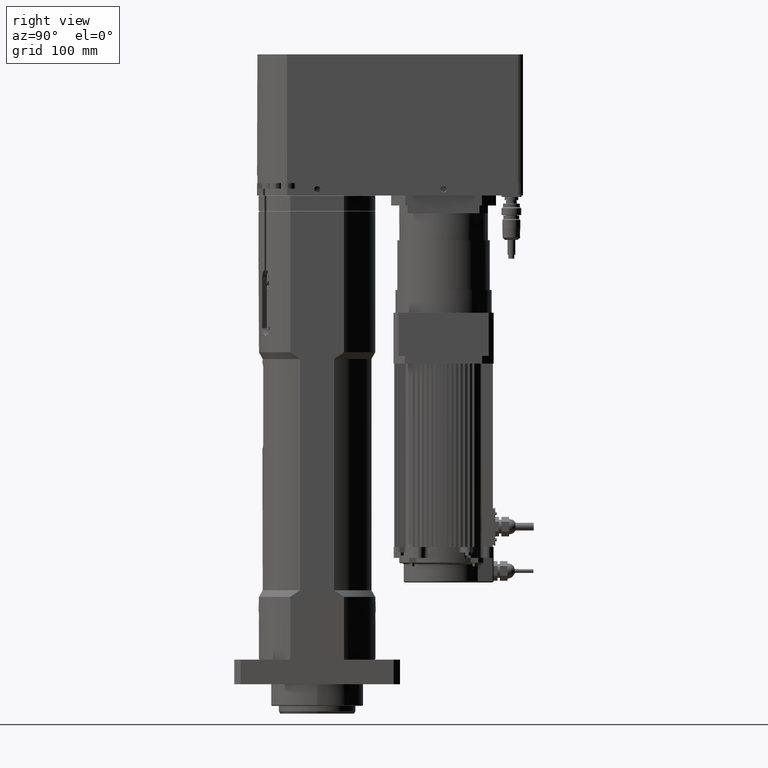
[diagram: clean part render]
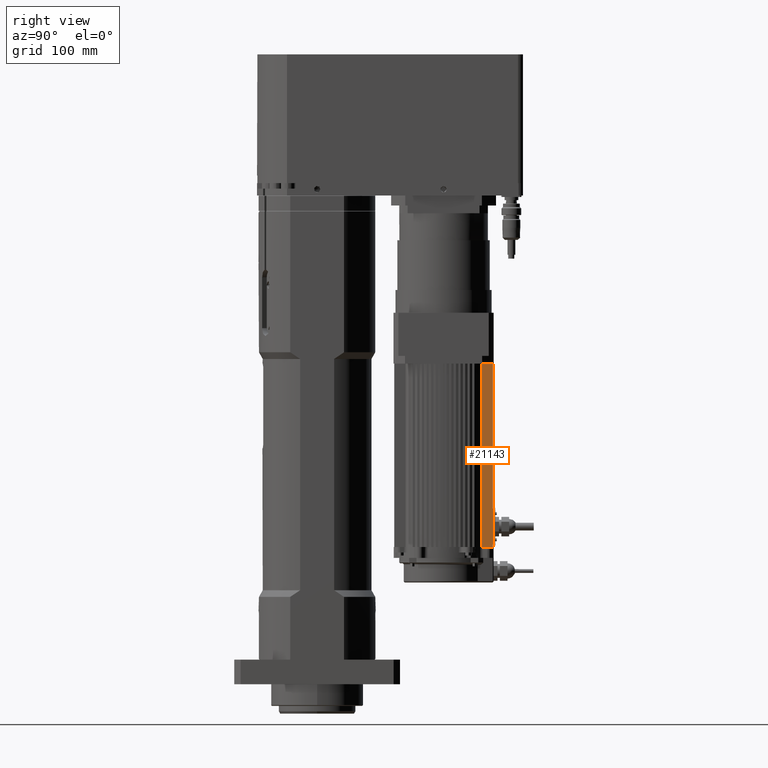
[diagram: same view with one face highlighted and labeled with its STEP entity id]
A machine part, right view. The second image highlights one B-rep face of the part: STEP entity #21143.
In plain terms, the highlighted planar face has unit normal (1, -0, -0).
Its self-contained STEP definition (entity closure, byte-faithful):
#1148=LINE('',#36772,#2822);
#1149=LINE('',#36775,#2823);
#1152=LINE('',#36782,#2826);
#1419=LINE('',#37572,#3093);
#1420=LINE('',#37575,#3094);
#1421=LINE('',#37576,#3095);
#2822=VECTOR('',#27767,3.91076170316297);
#2823=VECTOR('',#27770,8.50393446575744);
#2826=VECTOR('',#27777,2.28169577186271);
#3093=VECTOR('',#28528,238.);
#3094=VECTOR('',#28531,238.);
#3095=VECTOR('',#28532,14.6963919407831);
#5435=FACE_OUTER_BOUND('',#6923,.T.);
#6923=EDGE_LOOP('',(#17082,#17083,#17084,#17085,#17086,#17087));
#9266=VERTEX_POINT('',#36336);
#9426=VERTEX_POINT('',#36770);
#9427=VERTEX_POINT('',#36774);
#9428=VERTEX_POINT('',#36778);
#9710=VERTEX_POINT('',#37570);
#9711=VERTEX_POINT('',#37574);
#11896=EDGE_CURVE('',#9426,#9266,#1148,.T.);
#11897=EDGE_CURVE('',#9266,#9427,#1149,.T.);
#11901=EDGE_CURVE('',#9427,#9428,#1152,.T.);
#12288=EDGE_CURVE('',#9710,#9426,#1419,.T.);
#12289=EDGE_CURVE('',#9711,#9428,#1420,.T.);
#12290=EDGE_CURVE('',#9711,#9710,#1421,.T.);
#17082=ORIENTED_EDGE('',*,*,#12289,.T.);
#17083=ORIENTED_EDGE('',*,*,#11901,.F.);
#17084=ORIENTED_EDGE('',*,*,#11897,.F.);
#17085=ORIENTED_EDGE('',*,*,#11896,.F.);
#17086=ORIENTED_EDGE('',*,*,#12288,.F.);
#17087=ORIENTED_EDGE('',*,*,#12290,.F.);
#18837=PLANE('',#23223);
#21143=ADVANCED_FACE('',(#5435),#18837,.T.);
#23223=AXIS2_PLACEMENT_3D('',#37573,#28529,#28530);
#27767=DIRECTION('',(-4.86129646027422E-16,-1.,-2.13267588378177E-53));
#27770=DIRECTION('',(-4.86129646027422E-16,-1.,-2.13267588378177E-53));
#27777=DIRECTION('',(-4.86129646027422E-16,-1.,-2.13267588378177E-53));
#28528=DIRECTION('',(4.6442906133275E-69,2.13267588378177E-53,-1.));
#28529=DIRECTION('center_axis',(1.,-4.86129646027422E-16,-5.72327911141304E-69));
#28530=DIRECTION('ref_axis',(-7.105427357601E-16,-1.,0.));
#28531=DIRECTION('',(4.6442906133275E-69,2.13267588378177E-53,-1.));
#28532=DIRECTION('',(4.86129646027422E-16,1.,2.13267588378177E-53));
#36336=CARTESIAN_POINT('',(40.,224.089238296838,178.));
#36770=CARTESIAN_POINT('',(40.,228.000000000001,178.));
#36772=CARTESIAN_POINT('',(40.,228.000000000001,178.));
#36774=CARTESIAN_POINT('',(40.,215.58530383108,178.));
#36775=CARTESIAN_POINT('',(40.,228.000000000001,178.));
#36778=CARTESIAN_POINT('',(40.,213.303608059218,178.));
#36782=CARTESIAN_POINT('',(40.,228.000000000001,178.));
#37570=CARTESIAN_POINT('',(40.,228.000000000001,416.));
#37572=CARTESIAN_POINT('',(40.,228.000000000001,416.));
#37573=CARTESIAN_POINT('Origin',(40.,228.000000000001,416.));
#37574=CARTESIAN_POINT('',(40.,213.303608059218,416.));
#37575=CARTESIAN_POINT('',(40.,213.303608059218,416.));
#37576=CARTESIAN_POINT('',(40.,196.000000000001,416.));